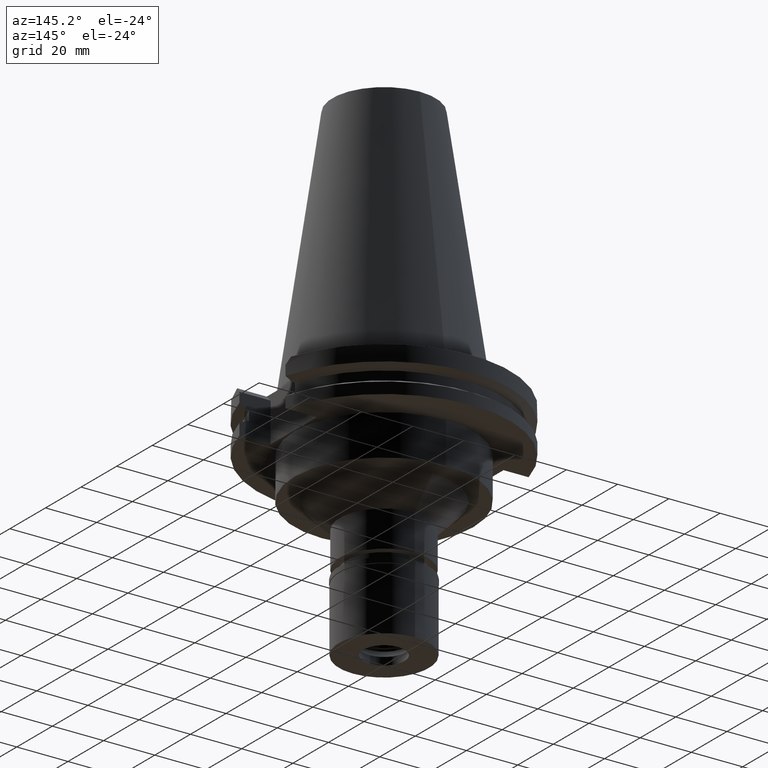
[diagram: clean part render]
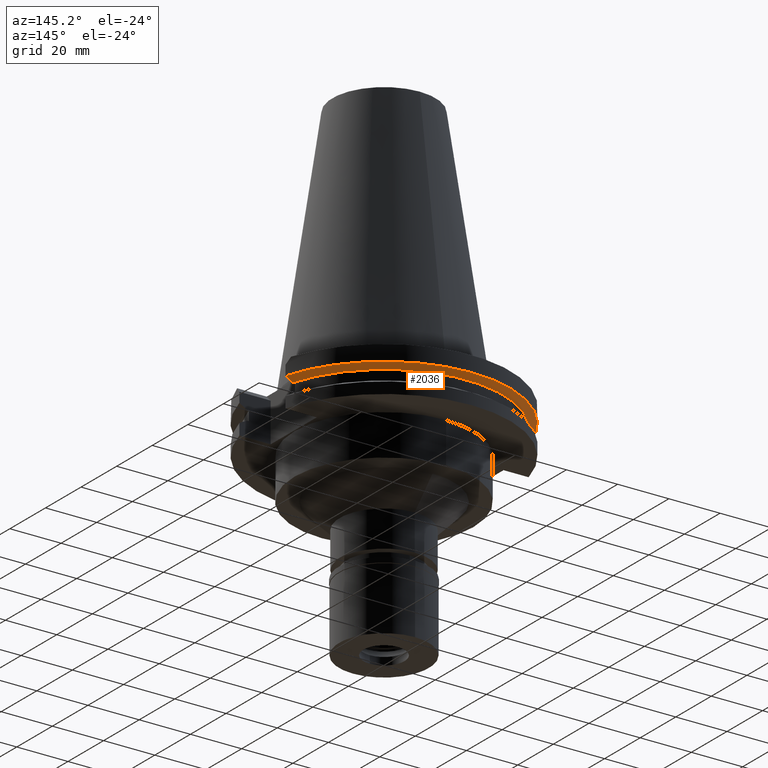
[diagram: same view with one face highlighted and labeled with its STEP entity id]
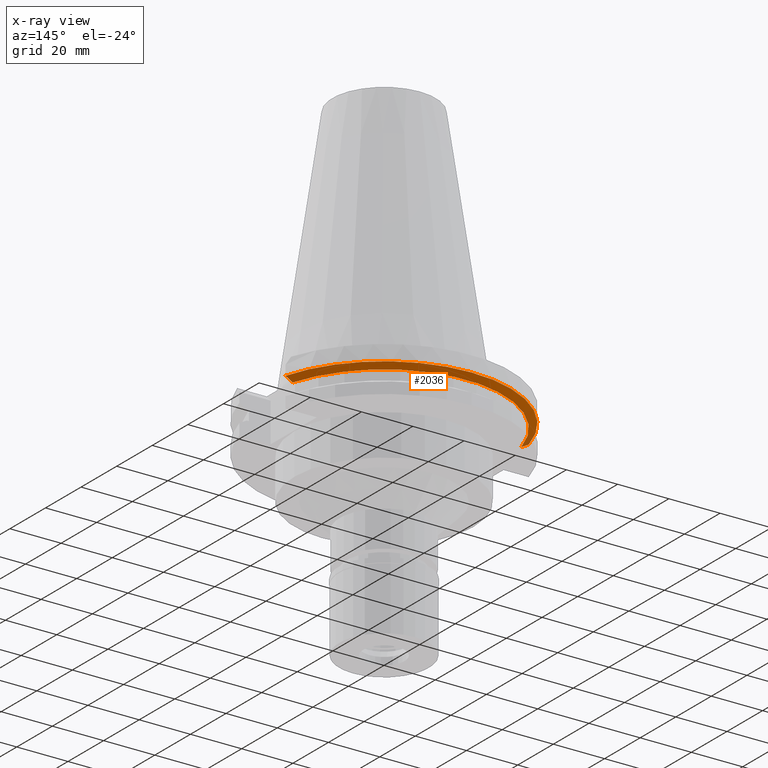
[diagram: x-ray of the same camera — body ghosted, the highlighted face saturated]
A machine part, auxiliary view. The second image highlights one B-rep face of the part: STEP entity #2036.
The next image is the same camera in x-ray: the body ghosted, the highlighted face saturated — about 2% of this face is hidden behind the body in this view.
In plain terms, the highlighted conical surface has half-angle 60 deg.
Its self-contained STEP definition (entity closure, byte-faithful):
#235 = CARTESIAN_POINT ( 'NONE',  ( 0.0000000000000000000, 1.121722380078999823E-14, -8.404416615464000984 ) ) ;
#274 = DIRECTION ( 'NONE',  ( 0.0000000000000000000, 0.0000000000000000000, 1.000000000000000000 ) ) ;
#374 = DIRECTION ( 'NONE',  ( 0.0000000000000000000, 0.0000000000000000000, 1.000000000000000000 ) ) ;
#419 = VERTEX_POINT ( 'NONE', #580 ) ;
#440 = AXIS2_PLACEMENT_3D ( 'NONE', #824, #374, #1337 ) ;
#481 = FACE_OUTER_BOUND ( 'NONE', #2697, .T. ) ;
#580 = CARTESIAN_POINT ( 'NONE',  ( -47.47671146204000081, 12.95500000000000007, -7.601333230924999462 ) ) ;
#793 = CIRCLE ( 'NONE', #2669, 49.21250000000001279 ) ;
#817 = VERTEX_POINT ( 'NONE', #2086 ) ;
#824 = CARTESIAN_POINT ( 'NONE',  ( 0.0000000000000000000, 1.121722380078999823E-14, -9.207500000002999840 ) ) ;
#867 = CARTESIAN_POINT ( 'NONE',  ( 45.52193301705833761, 12.95500000000000007, -8.688918494169680429 ) ) ;
#939 = CARTESIAN_POINT ( 'NONE',  ( 0.0000000000000000000, 1.121722380078999823E-14, -7.601333230925999551 ) ) ;
#1067 = VERTEX_POINT ( 'NONE', #1183 ) ;
#1141 = CARTESIAN_POINT ( 'NONE',  ( -44.58657636813000380, 12.95500000000000007, -9.207500000000999663 ) ) ;
#1162 = CARTESIAN_POINT ( 'NONE',  ( -45.52193301184070862, 12.95500000000000007, -8.688918497074082481 ) ) ;
#1183 = CARTESIAN_POINT ( 'NONE',  ( 47.47671146204000081, 12.95500000000000007, -7.601333230924999462 ) ) ;
#1216 = CONICAL_SURFACE ( 'NONE', #1431, 47.82151877527000039, 1.047197551196400456 ) ;
#1298 = ORIENTED_EDGE ( 'NONE', *, *, #1658, .F. ) ;
#1337 = DIRECTION ( 'NONE',  ( 0.9602855947900087452, 0.2790189535476025329, 0.0000000000000000000 ) ) ;
#1388 = EDGE_CURVE ( 'NONE', #3076, #1067, #2930, .T. ) ;
#1431 = AXIS2_PLACEMENT_3D ( 'NONE', #235, #274, #3055 ) ;
#1578 = EDGE_CURVE ( 'NONE', #419, #817, #2083, .T. ) ;
#1654 = CARTESIAN_POINT ( 'NONE',  ( -47.47671146204000081, 12.95500000000000007, -7.601333230924999462 ) ) ;
#1658 = EDGE_CURVE ( 'NONE', #1067, #419, #793, .T. ) ;
#1893 = CARTESIAN_POINT ( 'NONE',  ( 47.47671146204000081, 12.95500000000000007, -7.601333230924999462 ) ) ;
#1948 = DIRECTION ( 'NONE',  ( 0.0000000000000000000, 0.0000000000000000000, 1.000000000000000000 ) ) ;
#2036 = ADVANCED_FACE ( 'NONE', ( #481 ), #1216, .T. ) ;
#2083 = B_SPLINE_CURVE_WITH_KNOTS ( 'NONE', 3,
 ( #1654, #3243, #1162, #1141 ),
 .UNSPECIFIED., .F., .F.,
 ( 4, 4 ),
 ( 0.0000000000000000000, 1.000000000000000000 ),
 .UNSPECIFIED. ) ;
#2086 = CARTESIAN_POINT ( 'NONE',  ( -44.58657636813000380, 12.95500000000000007, -9.207500000000999663 ) ) ;
#2092 = CIRCLE ( 'NONE', #440, 46.43053755053000486 ) ;
#2280 = ORIENTED_EDGE ( 'NONE', *, *, #1578, .F. ) ;
#2360 = CARTESIAN_POINT ( 'NONE',  ( 46.48531138169500565, 12.95500000000000007, -8.153529571144348509 ) ) ;
#2431 = CARTESIAN_POINT ( 'NONE',  ( 44.58657636813000380, 12.95500000000000007, -9.207500000000999663 ) ) ;
#2464 = DIRECTION ( 'NONE',  ( 0.9647287063660957562, 0.2632461264922989486, 0.0000000000000000000 ) ) ;
#2580 = EDGE_CURVE ( 'NONE', #3076, #817, #2092, .T. ) ;
#2669 = AXIS2_PLACEMENT_3D ( 'NONE', #939, #1948, #2464 ) ;
#2697 = EDGE_LOOP ( 'NONE', ( #2280, #1298, #2718, #3310 ) ) ;
#2718 = ORIENTED_EDGE ( 'NONE', *, *, #1388, .F. ) ;
#2930 = B_SPLINE_CURVE_WITH_KNOTS ( 'NONE', 3,
 ( #3159, #867, #2360, #1893 ),
 .UNSPECIFIED., .F., .F.,
 ( 4, 4 ),
 ( 0.0000000000000000000, 1.000000000000000000 ),
 .UNSPECIFIED. ) ;
#3055 = DIRECTION ( 'NONE',  ( 0.0000000000000000000, 1.000000000000000000, 0.0000000000000000000 ) ) ;
#3076 = VERTEX_POINT ( 'NONE', #2431 ) ;
#3159 = CARTESIAN_POINT ( 'NONE',  ( 44.58657636813000380, 12.95500000000000007, -9.207500000000999663 ) ) ;
#3243 = CARTESIAN_POINT ( 'NONE',  ( -46.48531137647736244, 12.95500000000000007, -8.153529574048748785 ) ) ;
#3310 = ORIENTED_EDGE ( 'NONE', *, *, #2580, .T. ) ;